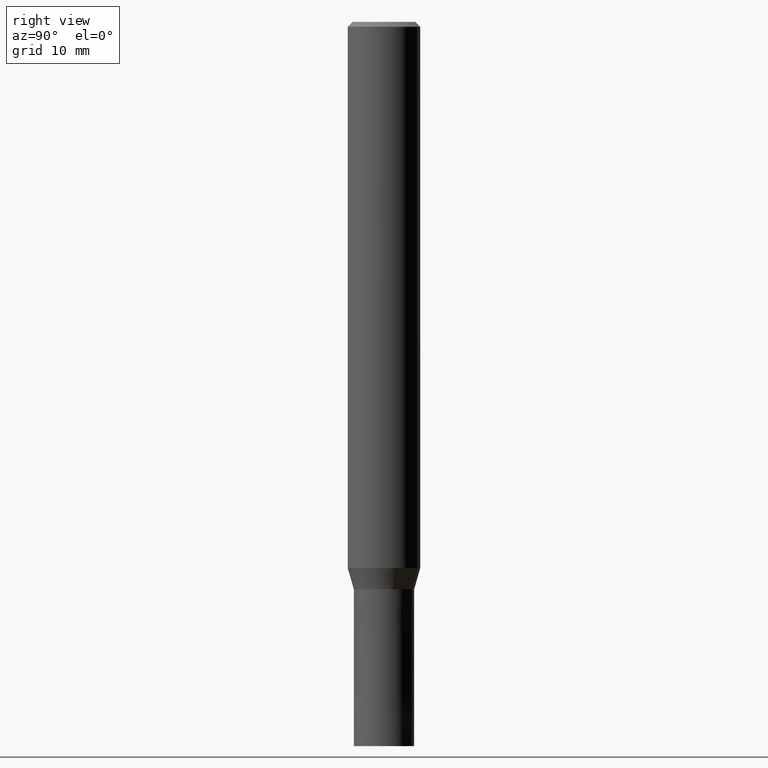
[diagram: clean part render]
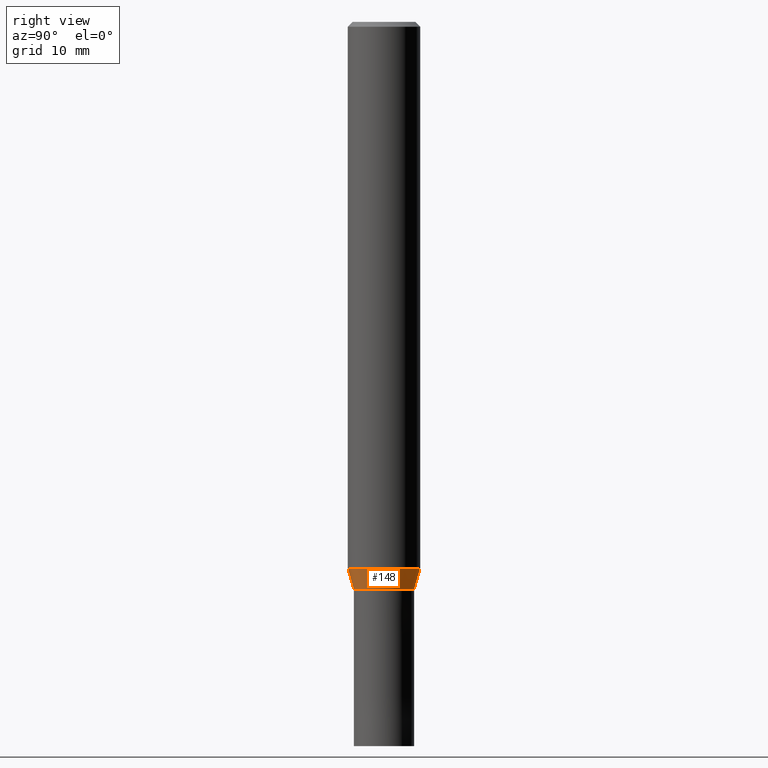
[diagram: same view with one face highlighted and labeled with its STEP entity id]
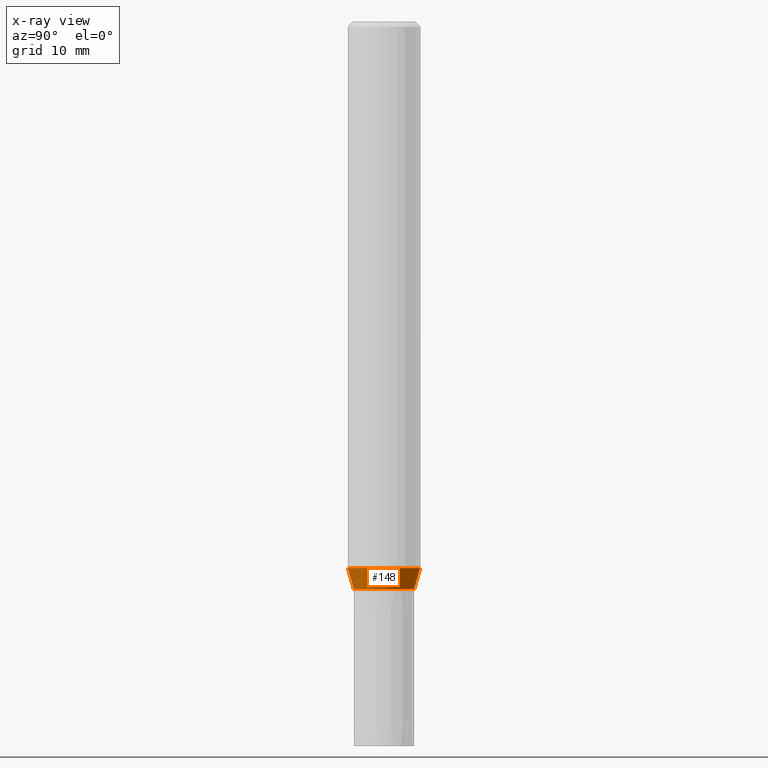
[diagram: x-ray of the same camera — body ghosted, the highlighted face saturated]
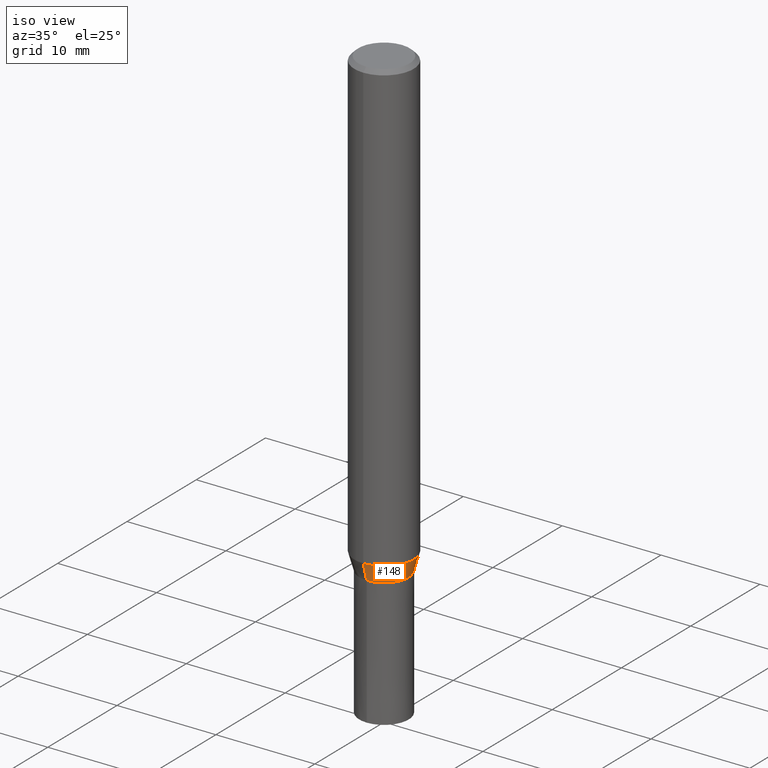
[diagram: same view with one face highlighted and labeled with its STEP entity id]
A machine part, right view. The second image highlights one B-rep face of the part: STEP entity #148.
The next image is the same camera in x-ray: the body ghosted, the highlighted face saturated — about 0% of this face is hidden behind the body in this view.
A second angle (iso view) of the same face is appended — the face is thin or edge-on in the first view.
In plain terms, the highlighted conical surface has half-angle 15.997 deg.
Its self-contained STEP definition (entity closure, byte-faithful):
#88=VERTEX_POINT('',#209);
#98=VERTEX_POINT('',#220);
#104=EDGE_CURVE('',#88,#136,#226,.T.);
#110=EDGE_CURVE('',#128,#88,#233,.T.);
#128=VERTEX_POINT('',#252);
#136=VERTEX_POINT('',#262);
#148=ADVANCED_FACE('',(#276),#277,.T.);
#164=EDGE_CURVE('',#98,#128,#295,.T.);
#172=EDGE_CURVE('',#98,#136,#303,.T.);
#209=CARTESIAN_POINT('',(3.06145465423825E-016,-2.49995,-47.0));
#220=CARTESIAN_POINT('',(0.0,2.99995,-45.256));
#226=LINE('',#359,#360);
#233=CIRCLE('',#370,2.49995);
#252=CARTESIAN_POINT('',(0.0,2.49995,-47.0));
#262=CARTESIAN_POINT('',(3.67375783114944E-016,-2.99995,-45.256));
#276=FACE_OUTER_BOUND('',#420,.T.);
#277=CONICAL_SURFACE('',#421,2.74995,0.279208199033747);
#295=LINE('',#445,#446);
#303=CIRCLE('',#455,2.99995);
#359=CARTESIAN_POINT('',(3.36760624269385E-016,-2.74995,-46.128));
#360=VECTOR('',#499,1.0);
#370=AXIS2_PLACEMENT_3D('',#507,#508,#509);
#420=EDGE_LOOP('',(#566,#567,#568,#569));
#421=AXIS2_PLACEMENT_3D('',#570,#571,#572);
#445=CARTESIAN_POINT('',(-3.36760624269385E-016,2.74995,-46.128));
#446=VECTOR('',#594,1.0);
#455=AXIS2_PLACEMENT_3D('',#595,#596,#597);
#499=DIRECTION('',(3.37494895041124E-017,-0.275594597388538,0.961273955691222));
#507=CARTESIAN_POINT('',(0.0,0.0,-47.0));
#508=DIRECTION('',(0.0,0.0,-1.0));
#509=DIRECTION('',(0.0,1.0,0.0));
#566=ORIENTED_EDGE('',*,*,#164,.F.);
#567=ORIENTED_EDGE('',*,*,#172,.T.);
#568=ORIENTED_EDGE('',*,*,#104,.F.);
#569=ORIENTED_EDGE('',*,*,#110,.F.);
#570=CARTESIAN_POINT('',(0.0,0.0,-46.128));
#571=DIRECTION('',(-0.0,-0.0,1.0));
#572=DIRECTION('',(0.0,1.0,0.0));
#594=DIRECTION('',(3.37494895041124E-017,-0.275594597388538,-0.961273955691222));
#595=CARTESIAN_POINT('',(0.0,0.0,-45.256));
#596=DIRECTION('',(0.0,0.0,-1.0));
#597=DIRECTION('',(0.0,1.0,0.0));